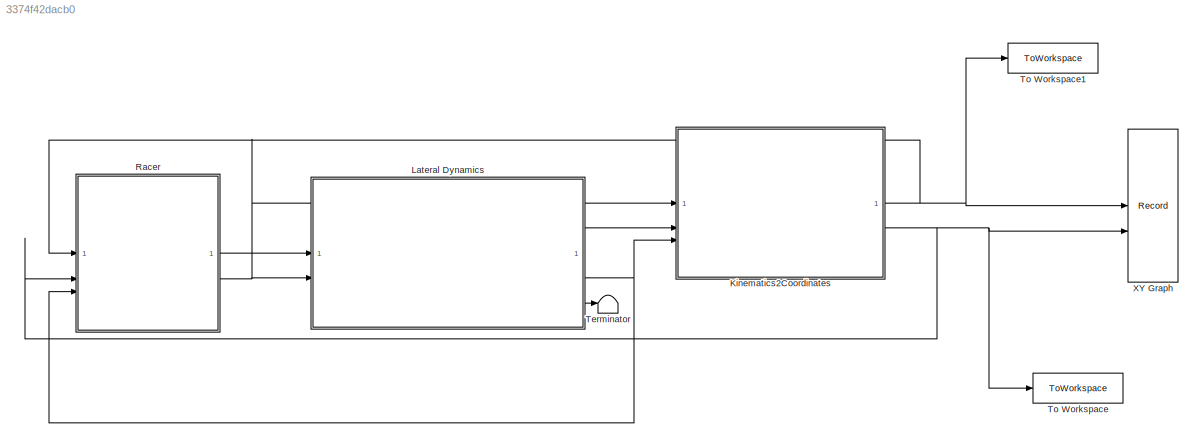
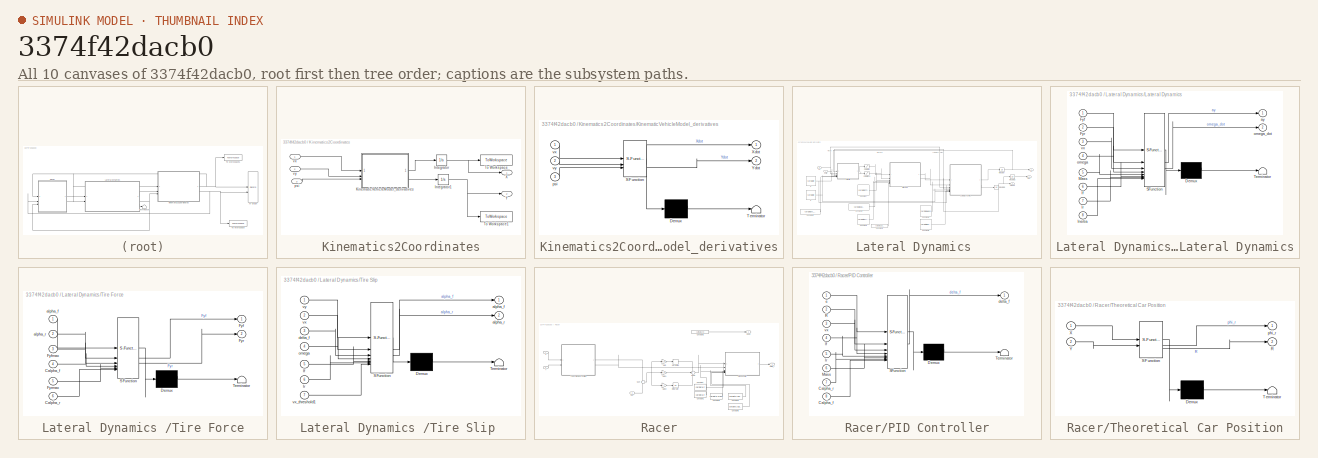
[diagram: thumbnail index - all 10 canvases of the model, root first then tree order]
MODEL slx_3374f42dacb0
KIND model
CONFIG AbsTol = auto
CONFIG EnableMultiTasking = off
CONFIG FixedStep = auto
CONFIG MaxStep = auto
CONFIG MinStep = auto
CONFIG RelTol = 1e-3
CONFIG SampleTimeConstraint = Unconstrained
CONFIG SolverName = VariableStepAuto
CONFIG StartTime = 0.0
CONFIG StopTime = 1000
BLOCK [SubSystem] Kinematics2Coordinates
BLOCK [Integrator] Kinematics2Coordinates/Integrator
  InitialCondition = carData.init.X0
BLOCK [Integrator] Kinematics2Coordinates/Integrator1
  InitialCondition = carData.init.Y0
BLOCK [SubSystem] Kinematics2Coordinates/KinematicVehicleModel_derivatives
  ErrorFcn = Stateflow.Translate.translate
  PermitHierarchicalResolution = ExplicitOnly
  SFBlockType = MATLAB Function
  TreatAsAtomicUnit = on
BLOCK [Demux] Kinematics2Coordinates/KinematicVehicleModel_derivatives/ Demux 
  Outputs = 1
BLOCK [S-Function] Kinematics2Coordinates/KinematicVehicleModel_derivatives/ SFunction 
  EnableBusSupport = on
  FunctionName = sf_sfun
  PortCounts = [3 3]
  SFcnIsStateOwnerBlock = off
  SFunctionDeploymentMode = off
  Tag = Stateflow S-Function 5
BLOCK [Terminator] Kinematics2Coordinates/KinematicVehicleModel_derivatives/ Terminator 
BLOCK [Outport] Kinematics2Coordinates/KinematicVehicleModel_derivatives/Xdot
BLOCK [Outport] Kinematics2Coordinates/KinematicVehicleModel_derivatives/Ydot
  Port = 2
BLOCK [Inport] Kinematics2Coordinates/KinematicVehicleModel_derivatives/psi
  Port = 3
BLOCK [Inport] Kinematics2Coordinates/KinematicVehicleModel_derivatives/vx
BLOCK [Inport] Kinematics2Coordinates/KinematicVehicleModel_derivatives/vy
  Port = 2
BLOCK [ToWorkspace] Kinematics2Coordinates/To Workspace
  FixptAsFi = on
  MaxDataPoints = inf
  SampleTime = -1
  SaveFormat = Timeseries
  VariableName = X
BLOCK [ToWorkspace] Kinematics2Coordinates/To Workspace1
  FixptAsFi = on
  MaxDataPoints = inf
  SampleTime = -1
  SaveFormat = Timeseries
  VariableName = Y
BLOCK [Outport] Kinematics2Coordinates/X
BLOCK [Outport] Kinematics2Coordinates/Y
  Port = 2
BLOCK [Inport] Kinematics2Coordinates/psi
  Port = 3
BLOCK [Inport] Kinematics2Coordinates/vx
BLOCK [Inport] Kinematics2Coordinates/vy
  Port = 2
BLOCK [SubSystem] Lateral Dynamics 
BLOCK [Constant] Lateral Dynamics /Constant
  Value = carData.Fyfmax
BLOCK [Constant] Lateral Dynamics /Constant1
  Value = carData.Calpha_f
BLOCK [Constant] Lateral Dynamics /Constant2
  Value = carData.Fyrmax
BLOCK [Constant] Lateral Dynamics /Constant3
  Value = carData.Calpha_r
BLOCK [Constant] Lateral Dynamics /Constant4
  Value = carData.Mass
BLOCK [Constant] Lateral Dynamics /Constant5
  Value = carData.Inertia
BLOCK [Constant] Lateral Dynamics /Constant6
  Value = carData.vx_threshold1
BLOCK [Integrator] Lateral Dynamics /Integrator
  InitialCondition = carData.init.vy0
BLOCK [Integrator] Lateral Dynamics /Integrator1
  InitialCondition = carData.init.omega0
BLOCK [Integrator] Lateral Dynamics /Integrator2
  InitialCondition = carData.init.psi0
  WrappedStateLowerValue = 0
  WrappedStateUpperValue = 2*pi
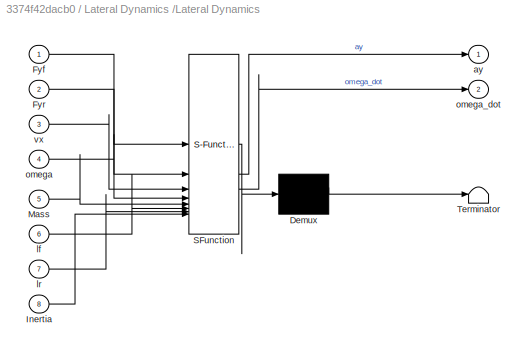
BLOCK [SubSystem] Lateral Dynamics /Lateral Dynamics
  ErrorFcn = Stateflow.Translate.translate
  PermitHierarchicalResolution = ExplicitOnly
  SFBlockType = MATLAB Function
  TreatAsAtomicUnit = on
BLOCK [Demux] Lateral Dynamics /Lateral Dynamics/ Demux 
  Outputs = 1
BLOCK [S-Function] Lateral Dynamics /Lateral Dynamics/ SFunction 
  EnableBusSupport = on
  FunctionName = sf_sfun
  PortCounts = [8 3]
  SFcnIsStateOwnerBlock = off
  SFunctionDeploymentMode = off
  Tag = Stateflow S-Function 7
BLOCK [Terminator] Lateral Dynamics /Lateral Dynamics/ Terminator 
BLOCK [Inport] Lateral Dynamics /Lateral Dynamics/Fyf
BLOCK [Inport] Lateral Dynamics /Lateral Dynamics/Fyr
  Port = 2
BLOCK [Inport] Lateral Dynamics /Lateral Dynamics/Inertia
  Port = 8
BLOCK [Inport] Lateral Dynamics /Lateral Dynamics/Mass
  Port = 5
BLOCK [Outport] Lateral Dynamics /Lateral Dynamics/ay
BLOCK [Inport] Lateral Dynamics /Lateral Dynamics/lf
  Port = 6
BLOCK [Inport] Lateral Dynamics /Lateral Dynamics/lr
  Port = 7
BLOCK [Inport] Lateral Dynamics /Lateral Dynamics/omega
  Port = 4
BLOCK [Outport] Lateral Dynamics /Lateral Dynamics/omega_dot
  Port = 2
BLOCK [Inport] Lateral Dynamics /Lateral Dynamics/vx
  Port = 3
BLOCK [Saturate] Lateral Dynamics /Saturation
  LowerLimit = -carData.maxAlpha
  UpperLimit = carData.maxAlpha
BLOCK [Saturate] Lateral Dynamics /Saturation1
  LowerLimit = -carData.maxAlpha
  UpperLimit = carData.maxAlpha
BLOCK [SubSystem] Lateral Dynamics /Tire Force
  ErrorFcn = Stateflow.Translate.translate
  PermitHierarchicalResolution = ExplicitOnly
  SFBlockType = MATLAB Function
  TreatAsAtomicUnit = on
BLOCK [Demux] Lateral Dynamics /Tire Force/ Demux 
  Outputs = 1
BLOCK [S-Function] Lateral Dynamics /Tire Force/ SFunction 
  EnableBusSupport = on
  FunctionName = sf_sfun
  PortCounts = [6 3]
  SFcnIsStateOwnerBlock = off
  SFunctionDeploymentMode = off
  Tag = Stateflow S-Function 6
BLOCK [Terminator] Lateral Dynamics /Tire Force/ Terminator 
BLOCK [Inport] Lateral Dynamics /Tire Force/Calpha_f
  Port = 4
BLOCK [Inport] Lateral Dynamics /Tire Force/Calpha_r
  Port = 6
BLOCK [Outport] Lateral Dynamics /Tire Force/Fyf
BLOCK [Inport] Lateral Dynamics /Tire Force/Fyfmax
  Port = 3
BLOCK [Outport] Lateral Dynamics /Tire Force/Fyr
  Port = 2
BLOCK [Inport] Lateral Dynamics /Tire Force/Fyrmax
  Port = 5
BLOCK [Inport] Lateral Dynamics /Tire Force/alpha_f
BLOCK [Inport] Lateral Dynamics /Tire Force/alpha_r
  Port = 2
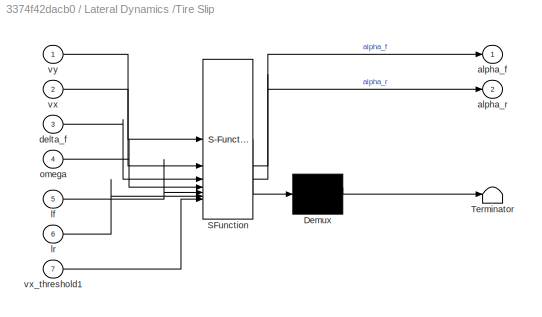
BLOCK [SubSystem] Lateral Dynamics /Tire Slip 
  ErrorFcn = Stateflow.Translate.translate
  PermitHierarchicalResolution = ExplicitOnly
  SFBlockType = MATLAB Function
  TreatAsAtomicUnit = on
BLOCK [Demux] Lateral Dynamics /Tire Slip / Demux 
  Outputs = 1
BLOCK [S-Function] Lateral Dynamics /Tire Slip / SFunction 
  EnableBusSupport = on
  FunctionName = sf_sfun
  PortCounts = [7 3]
  SFcnIsStateOwnerBlock = off
  SFunctionDeploymentMode = off
  Tag = Stateflow S-Function 2
BLOCK [Terminator] Lateral Dynamics /Tire Slip / Terminator 
BLOCK [Outport] Lateral Dynamics /Tire Slip /alpha_f
BLOCK [Outport] Lateral Dynamics /Tire Slip /alpha_r
  Port = 2
BLOCK [Inport] Lateral Dynamics /Tire Slip /delta_f
  Port = 3
BLOCK [Inport] Lateral Dynamics /Tire Slip /lf
  Port = 5
BLOCK [Inport] Lateral Dynamics /Tire Slip /lr
  Port = 6
BLOCK [Inport] Lateral Dynamics /Tire Slip /omega
  Port = 4
BLOCK [Inport] Lateral Dynamics /Tire Slip /vx
  Port = 2
BLOCK [Inport] Lateral Dynamics /Tire Slip /vx_threshold1
  Port = 7
BLOCK [Inport] Lateral Dynamics /Tire Slip /vy
BLOCK [Inport] Lateral Dynamics /delta
BLOCK [Constant] Lateral Dynamics /lf
  Value = carData.lf
BLOCK [Constant] Lateral Dynamics /lr
  Value = carData.lr
BLOCK [Outport] Lateral Dynamics /omega
  Port = 3
BLOCK [Outport] Lateral Dynamics /psi
  Port = 2
BLOCK [Inport] Lateral Dynamics /vx
  Port = 2
BLOCK [Outport] Lateral Dynamics /vy
BLOCK [SubSystem] Racer
BLOCK [Constant] Racer/Constant
  Value = carData.lf
BLOCK [Constant] Racer/Constant1
  Value = carData.lr
BLOCK [Constant] Racer/Constant2
  Value = carData.vxd
BLOCK [Constant] Racer/Constant3
  Value = carData.Mass
BLOCK [Constant] Racer/Constant4
  Value = carData.Calpha_r
BLOCK [Constant] Racer/Constant5
  Value = carData.Calpha_f
BLOCK [Derivative] Racer/Derivative
BLOCK [Gain] Racer/Gain
  Gain = K_d
BLOCK [Gain] Racer/Gain1
  Gain = K_p
BLOCK [Gain] Racer/Gain2
  Gain = K_i
BLOCK [Integrator] Racer/Integrator
BLOCK [SubSystem] Racer/PID Controller
  ErrorFcn = Stateflow.Translate.translate
  PermitHierarchicalResolution = ExplicitOnly
  SFBlockType = MATLAB Function
  TreatAsAtomicUnit = on
BLOCK [Demux] Racer/PID Controller/ Demux 
  Outputs = 1
BLOCK [S-Function] Racer/PID Controller/ SFunction 
  EnableBusSupport = on
  FunctionName = sf_sfun
  PortCounts = [8 2]
  SFcnIsStateOwnerBlock = off
  SFunctionDeploymentMode = off
  Tag = Stateflow S-Function 8
BLOCK [Terminator] Racer/PID Controller/ Terminator 
BLOCK [Inport] Racer/PID Controller/Calpha_f
  Port = 8
BLOCK [Inport] Racer/PID Controller/Calpha_r
  Port = 7
BLOCK [Inport] Racer/PID Controller/Mass
  Port = 6
BLOCK [Inport] Racer/PID Controller/R
  Port = 2
BLOCK [Outport] Racer/PID Controller/delta_f
BLOCK [Inport] Racer/PID Controller/e
BLOCK [Inport] Racer/PID Controller/lf
  Port = 4
BLOCK [Inport] Racer/PID Controller/lr
  Port = 5
BLOCK [Inport] Racer/PID Controller/vx
  Port = 3
BLOCK [Sum] Racer/Sum
  Inputs = +-
BLOCK [Sum] Racer/Sum1
  Inputs = +++
BLOCK [SubSystem] Racer/Theoretical Car Position
  ErrorFcn = Stateflow.Translate.translate
  PermitHierarchicalResolution = ExplicitOnly
  SFBlockType = MATLAB Function
  TreatAsAtomicUnit = on
BLOCK [Demux] Racer/Theoretical Car Position/ Demux 
  Outputs = 1
BLOCK [S-Function] Racer/Theoretical Car Position/ SFunction 
  EnableBusSupport = on
  FunctionName = sf_sfun
  PortCounts = [2 3]
  SFcnIsStateOwnerBlock = off
  SFunctionDeploymentMode = off
  Tag = Stateflow S-Function 3
BLOCK [Terminator] Racer/Theoretical Car Position/ Terminator 
BLOCK [Outport] Racer/Theoretical Car Position/R
  Port = 2
BLOCK [Inport] Racer/Theoretical Car Position/X
BLOCK [Inport] Racer/Theoretical Car Position/Y
  Port = 2
BLOCK [Outport] Racer/Theoretical Car Position/phi_r
BLOCK [Outport] Racer/Vxd1
  Port = 2
BLOCK [Inport] Racer/X
BLOCK [Inport] Racer/Y
  Port = 2
BLOCK [Outport] Racer/delta_f
BLOCK [Inport] Racer/psi
  Port = 3
BLOCK [Terminator] Terminator
BLOCK [ToWorkspace] To Workspace
  FixptAsFi = on
  MaxDataPoints = inf
  SampleTime = -1
  SaveFormat = Timeseries
  VariableName = y_val
BLOCK [ToWorkspace] To Workspace1
  FixptAsFi = on
  MaxDataPoints = inf
  SampleTime = -1
  SaveFormat = Timeseries
  VariableName = x_val
BLOCK [Record] XY Graph
  CompatibilityTag = XY
  FileSettingsInternal = {"entries":[{"content":{"excelSettings":{"content":{},"type":"Streamout.ExcelSettings"}},"type":"Streamout.FileSettingStorage","uuid":""}],"packageUris":["http:\/\/schema.mathworks.com\/mf0\/streamout_blocks\/R2020a"],"version":"1.0"}
  Layout = [1 1]
  SignalsInternal = {"entries":[{"content":{"signals":[{"content":{"blockPath":[],"dimensions":[1],"domain":"","lineColor":"#a2142f","plots":[ 1 ],"port":1,"sid":[""],"signalID":1,"signalName":"Kinematics2Coordinates:1"},"type":"RecordBlkView.Signal","uuid":""},{"content":{"blockPath":[],"dimensions":[1],"domain":"","lineColor":"#139fff","plots":[ 1 ],"port":2,"sid":[""],"signalID":2,"signalName":"Kinematics2Coordina...<+194ch>
  VisualizationBindings = {"xyplotplugin":{"info":[{"series":[{"bindingParametersList":[{"parameter":"X-Axis","signalID":1,"signalName":"Kinematics2Coordinates:1"},{"parameter":"Y-Axis","signalID":2,"signalName":"Kinematics2Coordinates:2"}],"seriesID":0}],"subplotID":1}]}}
ANNOTATION Lateral Dynamics : Lateral Dynamics
ANNOTATION Lateral Dynamics : Tire Force
ANNOTATION Lateral Dynamics : Tire Slip
NET Kinematics2Coordinates/Integrator1:1 -> Kinematics2Coordinates/To Workspace1:1, Kinematics2Coordinates/Y:1
NET Kinematics2Coordinates/Integrator:1 -> Kinematics2Coordinates/To Workspace:1, Kinematics2Coordinates/X:1
LINE Kinematics2Coordinates/KinematicVehicleModel_derivatives:1 -> Kinematics2Coordinates/Integrator:1
LINE Kinematics2Coordinates/KinematicVehicleModel_derivatives:2 -> Kinematics2Coordinates/Integrator1:1
LINE Kinematics2Coordinates/psi:1 -> Kinematics2Coordinates/KinematicVehicleModel_derivatives:3
LINE Kinematics2Coordinates/vx:1 -> Kinematics2Coordinates/KinematicVehicleModel_derivatives:1
LINE Kinematics2Coordinates/vy:1 -> Kinematics2Coordinates/KinematicVehicleModel_derivatives:2
NET Kinematics2Coordinates:1 -> Racer:1, To Workspace1:1, XY Graph:1
NET Kinematics2Coordinates:2 -> Racer:2, To Workspace:1, XY Graph:2
LINE Lateral Dynamics /Constant1:1 -> Lateral Dynamics /Tire Force:4
LINE Lateral Dynamics /Constant2:1 -> Lateral Dynamics /Tire Force:5
LINE Lateral Dynamics /Constant3:1 -> Lateral Dynamics /Tire Force:6
LINE Lateral Dynamics /Constant4:1 -> Lateral Dynamics /Lateral Dynamics:5
LINE Lateral Dynamics /Constant5:1 -> Lateral Dynamics /Lateral Dynamics:8
LINE Lateral Dynamics /Constant6:1 -> Lateral Dynamics /Tire Slip :7
LINE Lateral Dynamics /Constant:1 -> Lateral Dynamics /Tire Force:3
NET Lateral Dynamics /Integrator1:1 -> Lateral Dynamics /Integrator2:1, Lateral Dynamics /Lateral Dynamics:4, Lateral Dynamics /Tire Slip :4, Lateral Dynamics /omega:1
LINE Lateral Dynamics /Integrator2:1 -> Lateral Dynamics /psi:1
NET Lateral Dynamics /Integrator:1 -> Lateral Dynamics /Tire Slip :1, Lateral Dynamics /vy:1
LINE Lateral Dynamics /Lateral Dynamics:1 -> Lateral Dynamics /Integrator:1
LINE Lateral Dynamics /Lateral Dynamics:2 -> Lateral Dynamics /Integrator1:1
LINE Lateral Dynamics /Saturation1:1 -> Lateral Dynamics /Tire Force:2
LINE Lateral Dynamics /Saturation:1 -> Lateral Dynamics /Tire Force:1
LINE Lateral Dynamics /Tire Force:1 -> Lateral Dynamics /Lateral Dynamics:1
LINE Lateral Dynamics /Tire Force:2 -> Lateral Dynamics /Lateral Dynamics:2
LINE Lateral Dynamics /Tire Slip :1 -> Lateral Dynamics /Saturation:1
LINE Lateral Dynamics /Tire Slip :2 -> Lateral Dynamics /Saturation1:1
LINE Lateral Dynamics /delta:1 -> Lateral Dynamics /Tire Slip :3
NET Lateral Dynamics /lf:1 -> Lateral Dynamics /Lateral Dynamics:6, Lateral Dynamics /Tire Slip :5
NET Lateral Dynamics /lr:1 -> Lateral Dynamics /Lateral Dynamics:7, Lateral Dynamics /Tire Slip :6
NET Lateral Dynamics /vx:1 -> Lateral Dynamics /Lateral Dynamics:3, Lateral Dynamics /Tire Slip :2
LINE Lateral Dynamics :1 -> Kinematics2Coordinates:2
NET Lateral Dynamics :2 -> Kinematics2Coordinates:3, Racer:3
LINE Lateral Dynamics :3 -> Terminator:1
LINE Racer/Constant1:1 -> Racer/PID Controller:5
LINE Racer/Constant2:1 -> Racer/Vxd1:1
LINE Racer/Constant3:1 -> Racer/PID Controller:6
LINE Racer/Constant4:1 -> Racer/PID Controller:7
LINE Racer/Constant5:1 -> Racer/PID Controller:8
LINE Racer/Constant:1 -> Racer/PID Controller:4
LINE Racer/Derivative:1 -> Racer/Sum1:1
LINE Racer/Gain1:1 -> Racer/Sum1:2
LINE Racer/Gain2:1 -> Racer/Integrator:1
LINE Racer/Gain:1 -> Racer/Derivative:1
LINE Racer/Integrator:1 -> Racer/Sum1:3
LINE Racer/PID Controller:1 -> Racer/delta_f:1
LINE Racer/Sum1:1 -> Racer/PID Controller:1
NET Racer/Sum:1 -> Racer/Gain1:1, Racer/Gain2:1, Racer/Gain:1
LINE Racer/Theoretical Car Position:1 -> Racer/Sum:1
LINE Racer/Theoretical Car Position:2 -> Racer/PID Controller:2
LINE Racer/X:1 -> Racer/Theoretical Car Position:1
LINE Racer/Y:1 -> Racer/Theoretical Car Position:2
LINE Racer/psi:1 -> Racer/Sum:2
LINE Racer:1 -> Lateral Dynamics :1
NET Racer:2 -> Kinematics2Coordinates:1, Lateral Dynamics :2
note: NET lines group one-source signal fan-out (src -> all destinations, sorted); 1:1 wires keep LINE
CHART Lateral Dynamics /Tire Slip  states=1 transitions=1
  STATE_LABEL 'eML_blk_kernel()'
  STATE_LABEL 'SCRIPT:\nfunction [alpha_f, alpha_r] = fcn(vy,  vx, delta_f, omega, lf, lr, vx_threshold1)\n\n\nif abs(vx)> vx_threshold1\n      alpha_f = delta_f - (vy + omega * lf) / vx;\n      alpha_r = - (vy - omega * lr) / vx;\nelse\n      alpha_f = 0;\n      alpha_r = 0;\nend\n\n\n\nend'
CHART Racer/Theoretical Car Position states=1 transitions=1
  STATE_LABEL 'eML_blk_kernel()'
  STATE_LABEL 'SCRIPT:\nfunction [phi_r, R] = car_position(X, Y)\n    phi_r = 0;\n    R = 0;\n    \n    if Y < 200\n        if X >= 0 && X <= 900\n            phi_r = 0; %first straight path from origin\n            R = 0;\n        elseif X > 900\n            phi_r = 2*pi - acos((X - 900) / 200) - deg2rad(270); %first turn \n            R = 200;\n        elseif X < 0\n            phi_r = acos(-X / 200) + deg2rad(270); %turn ...<+343ch>'
CHART Kinematics2Coordinates/KinematicVehicleModel_derivatives states=1 transitions=1
  STATE_LABEL 'eML_blk_kernel()'
  STATE_LABEL 'SCRIPT:\nfunction [Xdot, Ydot] = fcn(vx, vy, psi)\n    temp = TF(psi) * [vx;vy]; \n    Xdot = temp(1);\n    Ydot = temp(2);\n  \nend\n\nfunction y = TF(psi)\n    y = [cos(psi), -sin(psi); sin(psi), cos(psi)];\nend\n\n'
CHART Lateral Dynamics /Tire Force states=1 transitions=1
  STATE_LABEL 'eML_blk_kernel()'
  STATE_LABEL 'SCRIPT:\nfunction [Fyf, Fyr] = fcn(alpha_f, alpha_r, Fyfmax, Calpha_f, Fyrmax, Calpha_r)\n\nFyf = min(Fyfmax,Calpha_f * alpha_f);\nFyr = min(Fyrmax, Calpha_r * alpha_r);\n\nend'
CHART Lateral Dynamics /Lateral Dynamics states=1 transitions=1
  STATE_LABEL 'eML_blk_kernel()'
  STATE_LABEL 'SCRIPT:\nfunction [ay, omega_dot] = fcn(Fyf, Fyr, vx, omega, Mass, lf, lr, Inertia)\n\nFy = Fyf + Fyr;\nay = Fy / Mass - omega * vx;\n        \nM  = Fyf * lf - Fyr *lr;        \nomega_dot = M / Inertia;        \n\nend'
CHART Racer/PID Controller states=1 transitions=1
  STATE_LABEL 'eML_blk_kernel()'
  STATE_LABEL 'SCRIPT:\nfunction delta_f = fcn(e, R, vx, lf, lr, Mass, Calpha_r, Calpha_f)\nL = lr + lf;\nif R ~= 0\n    delta_f = e + (L/R)+((Mass/(L*R))*((lr/Calpha_r)-(lf/Calpha_f))*(vx^2));\nelse\n    delta_f = e;\n\nend\n\n'
CHART  states=0 transitions=0
CHART  states=0 transitions=0
CHART  states=0 transitions=0
CHART  states=0 transitions=0
CHART  states=0 transitions=0
CHART  states=0 transitions=0
